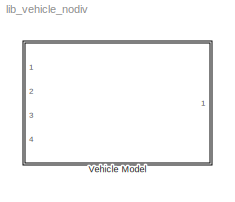
MODEL lib_vehicle_nodiv
KIND library
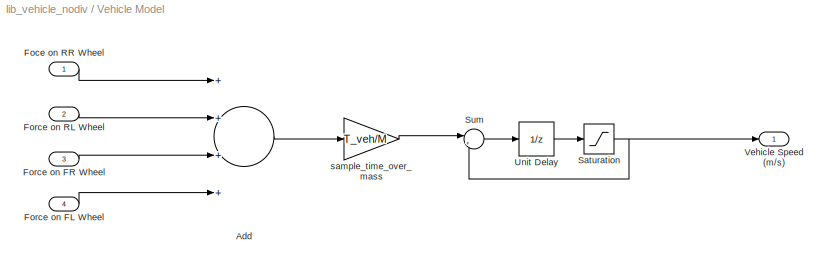
BLOCK [SubSystem] Vehicle Model
  FunctionWithSeparateData = off
  MaskHideContents = off
  MinAlgLoopOccurrences = on
  Opaque = off
  Ports = [4, 1]
  PropExecContextOutsideSubsystem = off
  RTWSystemCode = Auto
  RequestExecContextInheritance = off
  SID = 1
  TreatAsAtomicUnit = on
BLOCK [Sum] Vehicle Model/Add
  InputSameDT = off
  Inputs = ++++
  OutDataTypeStr = Inherit: Inherit via internal rule
  Ports = [4, 1]
  SID = 6
  SaturateOnIntegerOverflow = off
BLOCK [Inport] Vehicle Model/Foce on RR Wheel
  IconDisplay = Port number
  SID = 2
BLOCK [Inport] Vehicle Model/Force on FL Wheel
  IconDisplay = Port number
  Port = 4
  SID = 5
BLOCK [Inport] Vehicle Model/Force on FR Wheel
  IconDisplay = Port number
  Port = 3
  SID = 4
BLOCK [Inport] Vehicle Model/Force on RL Wheel
  IconDisplay = Port number
  Port = 2
  SID = 3
BLOCK [Saturate] Vehicle Model/Saturation
  InputPortMap = u0
  LowerLimit = 0
  Ports = [1, 1]
  SID = 14
  UpperLimit = v_max
BLOCK [Sum] Vehicle Model/Sum
  IconShape = round
  InputSameDT = off
  Inputs = |++
  OutDataTypeStr = Inherit: Inherit via internal rule
  Ports = [2, 1]
  SID = 13
  SaturateOnIntegerOverflow = off
BLOCK [UnitDelay] Vehicle Model/Unit Delay
  InputProcessing = Elements as channels (sample based)
  SID = 15
  SampleTime = -1
  X0 = v0
BLOCK [Outport] Vehicle Model/Vehicle Speed (m//s)
  IconDisplay = Port number
  SID = 9
BLOCK [Gain] Vehicle Model/sample_time_over_mass
  Gain = T_veh/M
  OutDataTypeStr = Inherit: Inherit via internal rule
  ParamDataTypeStr = Inherit: Inherit via internal rule
  SID = 7
  SaturateOnIntegerOverflow = off
LINE Vehicle Model/Add:1 -> Vehicle Model/sample_time_over_mass:1
LINE Vehicle Model/Foce on RR Wheel:1 -> Vehicle Model/Add:1
LINE Vehicle Model/Force on FL Wheel:1 -> Vehicle Model/Add:4
LINE Vehicle Model/Force on FR Wheel:1 -> Vehicle Model/Add:3
LINE Vehicle Model/Force on RL Wheel:1 -> Vehicle Model/Add:2
NET Vehicle Model/Saturation:1 -> Vehicle Model/Sum:2, Vehicle Model/Vehicle Speed (m//s):1
LINE Vehicle Model/Sum:1 -> Vehicle Model/Unit Delay:1
LINE Vehicle Model/Unit Delay:1 -> Vehicle Model/Saturation:1
LINE Vehicle Model/sample_time_over_mass:1 -> Vehicle Model/Sum:1
note: NET lines group one-source signal fan-out (src -> all destinations, sorted); 1:1 wires keep LINE
